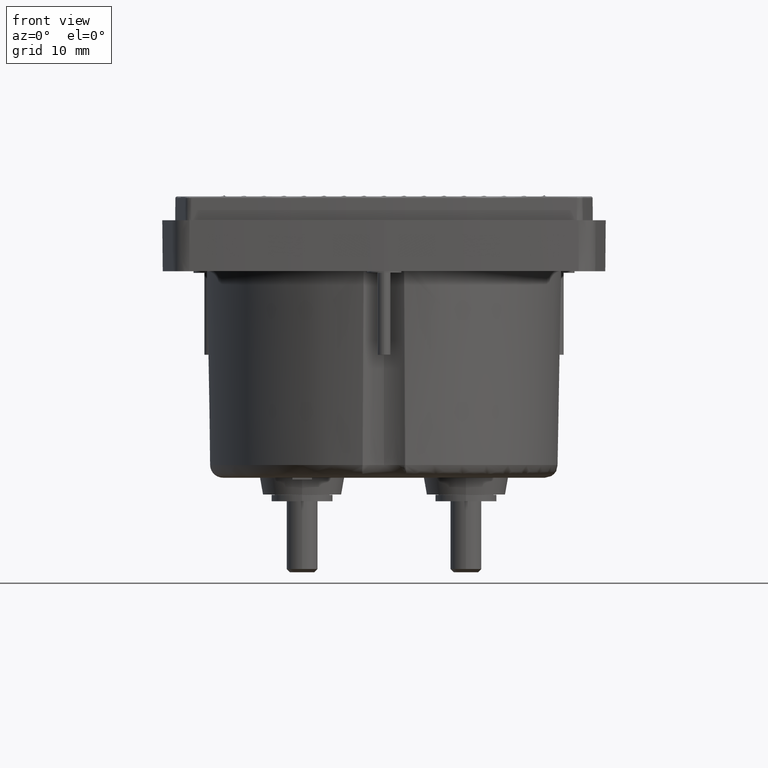
[diagram: clean part render]
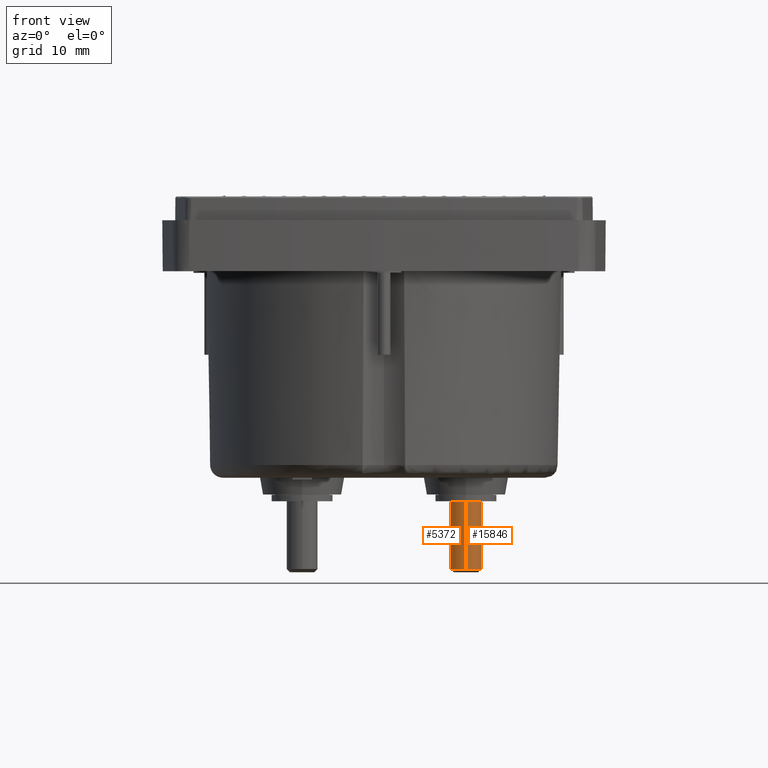
[diagram: same view with one multi-face feature highlighted, each face labeled with its STEP entity id]
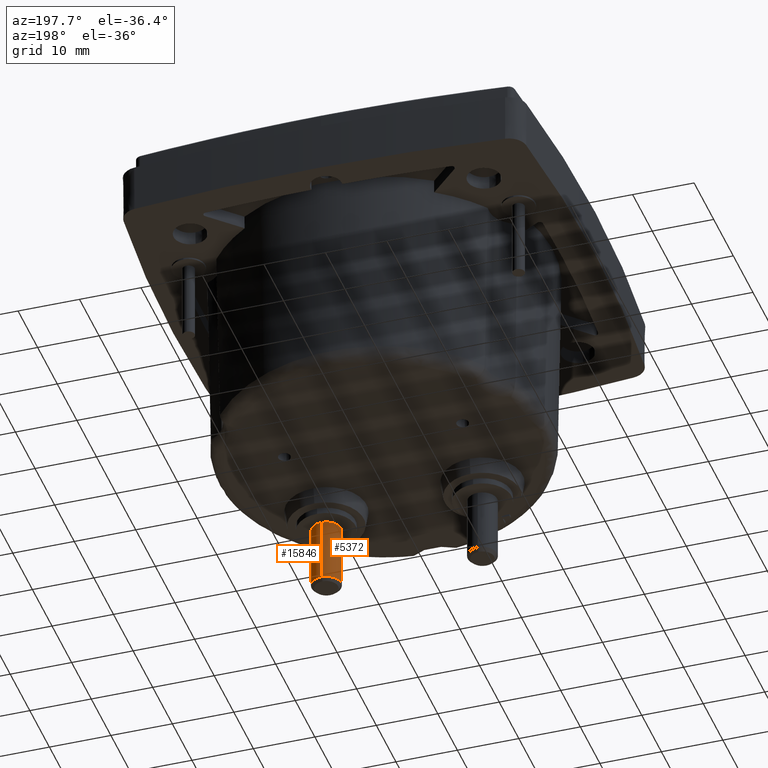
[diagram: same view with one multi-face feature highlighted, each face labeled with its STEP entity id]
A machine part, front view. The highlighted faces form ONE feature: a constant-radius fillet chain: 2 tangent blend faces with common blend radius 2.4 mm. The faces share edges in the B-rep.
A second angle (auxiliary view) of the same feature is appended — it is thin or edge-on in the first view.
Their STEP definitions:
[1] entity #5372 (Cylinder):
#896 = EDGE_LOOP ( 'NONE', ( #19648, #15893, #15320, #21729 ) ) ;
#915 = VERTEX_POINT ( 'NONE', #3619 ) ;
#1816 = DIRECTION ( 'NONE',  ( 0.000000000000000000, 1.000000000000000000, 0.000000000000000000 ) ) ;
#3619 = CARTESIAN_POINT ( 'NONE',  ( 1.070428637572283570, -0.5243881333733894090, -1.832677559055118310 ) ) ;
#5372 = ADVANCED_FACE ( 'NONE', ( #39122 ), #5507, .T. ) ;
#5507 = CYLINDRICAL_SURFACE ( 'NONE', #16151, 0.09448818897637792369 ) ;
#5927 = AXIS2_PLACEMENT_3D ( 'NONE', #34048, #48540, #14887 ) ;
#8078 = DIRECTION ( 'NONE',  ( 0.000000000000000000, 0.000000000000000000, -1.000000000000000000 ) ) ;
#9428 = VERTEX_POINT ( 'NONE', #26592 ) ;
#10161 = CARTESIAN_POINT ( 'NONE',  ( 1.070428637572283570, -0.7133645112596344040, -1.832677559055118310 ) ) ;
#11595 = VECTOR ( 'NONE', #8078, 39.37007874015748143 ) ;
#13779 = EDGE_CURVE ( 'NONE', #9428, #33797, #46354, .T. ) ;
#14887 = DIRECTION ( 'NONE',  ( 0.000000000000000000, 1.000000000000000000, 0.000000000000000000 ) ) ;
#15320 = ORIENTED_EDGE ( 'NONE', *, *, #44143, .T. ) ;
#15434 = DIRECTION ( 'NONE',  ( -0.000000000000000000, -0.000000000000000000, 1.000000000000000000 ) ) ;
#15893 = ORIENTED_EDGE ( 'NONE', *, *, #35081, .F. ) ;
#16151 = AXIS2_PLACEMENT_3D ( 'NONE', #17029, #32003, #1816 ) ;
#16409 = DIRECTION ( 'NONE',  ( 0.000000000000000000, 0.000000000000000000, -1.000000000000000000 ) ) ;
#17029 = CARTESIAN_POINT ( 'NONE',  ( 1.070428637572283570, -0.6188763223165119065, -1.419291732283464613 ) ) ;
#19172 = VERTEX_POINT ( 'NONE', #41865 ) ;
#19648 = ORIENTED_EDGE ( 'NONE', *, *, #13779, .F. ) ;
#20322 = CIRCLE ( 'NONE', #28914, 0.09448818897637792369 ) ;
#21729 = ORIENTED_EDGE ( 'NONE', *, *, #31032, .T. ) ;
#24248 = LINE ( 'NONE', #35555, #24477 ) ;
#24477 = VECTOR ( 'NONE', #16409, 39.37007874015748143 ) ;
#26592 = CARTESIAN_POINT ( 'NONE',  ( 1.070428637572283570, -0.7133645112928898024, -1.419291732283464613 ) ) ;
#27206 = DIRECTION ( 'NONE',  ( 0.000000000000000000, 1.000000000000000000, 0.000000000000000000 ) ) ;
#28914 = AXIS2_PLACEMENT_3D ( 'NONE', #38264, #15434, #27206 ) ;
#31032 = EDGE_CURVE ( 'NONE', #915, #33797, #20322, .T. ) ;
#31124 = CARTESIAN_POINT ( 'NONE',  ( 1.070428637572283570, -0.7133645112928898024, -1.419291732283464613 ) ) ;
#31777 = CIRCLE ( 'NONE', #5927, 0.09448818897637792369 ) ;
#32003 = DIRECTION ( 'NONE',  ( 0.000000000000000000, 0.000000000000000000, -1.000000000000000000 ) ) ;
#33797 = VERTEX_POINT ( 'NONE', #10161 ) ;
#34048 = CARTESIAN_POINT ( 'NONE',  ( 1.070428637572283570, -0.6188763223165119065, -1.419291732283464613 ) ) ;
#35081 = EDGE_CURVE ( 'NONE', #19172, #9428, #31777, .T. ) ;
#35555 = CARTESIAN_POINT ( 'NONE',  ( 1.070428637572283570, -0.5243881333401340106, -1.419291732283464613 ) ) ;
#38264 = CARTESIAN_POINT ( 'NONE',  ( 1.070428637572283570, -0.6188763223165119065, -1.832677559055118310 ) ) ;
#39122 = FACE_OUTER_BOUND ( 'NONE', #896, .T. ) ;
#41865 = CARTESIAN_POINT ( 'NONE',  ( 1.070428637572283570, -0.5243881333401340106, -1.419291732283464613 ) ) ;
#44143 = EDGE_CURVE ( 'NONE', #19172, #915, #24248, .T. ) ;
#46354 = LINE ( 'NONE', #31124, #11595 ) ;
#48540 = DIRECTION ( 'NONE',  ( -0.000000000000000000, -0.000000000000000000, 1.000000000000000000 ) ) ;
[2] entity #15846 (Cylinder):
#735 = CARTESIAN_POINT ( 'NONE',  ( 1.070428637572283570, -0.6188763223165119065, -1.832677559055118310 ) ) ;
#915 = VERTEX_POINT ( 'NONE', #3619 ) ;
#1659 = CIRCLE ( 'NONE', #32199, 0.09448818897637792369 ) ;
#3619 = CARTESIAN_POINT ( 'NONE',  ( 1.070428637572283570, -0.5243881333733894090, -1.832677559055118310 ) ) ;
#4884 = AXIS2_PLACEMENT_3D ( 'NONE', #18244, #44270, #33223 ) ;
#8078 = DIRECTION ( 'NONE',  ( 0.000000000000000000, 0.000000000000000000, -1.000000000000000000 ) ) ;
#9428 = VERTEX_POINT ( 'NONE', #26592 ) ;
#10161 = CARTESIAN_POINT ( 'NONE',  ( 1.070428637572283570, -0.7133645112596344040, -1.832677559055118310 ) ) ;
#10270 = CARTESIAN_POINT ( 'NONE',  ( 1.070428637572283570, -0.6188763223165119065, -1.419291732283464613 ) ) ;
#11595 = VECTOR ( 'NONE', #8078, 39.37007874015748143 ) ;
#12127 = ORIENTED_EDGE ( 'NONE', *, *, #44143, .F. ) ;
#12393 = ORIENTED_EDGE ( 'NONE', *, *, #42005, .F. ) ;
#13779 = EDGE_CURVE ( 'NONE', #9428, #33797, #46354, .T. ) ;
#15846 = ADVANCED_FACE ( 'NONE', ( #43901 ), #21557, .T. ) ;
#16409 = DIRECTION ( 'NONE',  ( 0.000000000000000000, 0.000000000000000000, -1.000000000000000000 ) ) ;
#18244 = CARTESIAN_POINT ( 'NONE',  ( 1.070428637572283570, -0.6188763223165119065, -1.419291732283464613 ) ) ;
#19172 = VERTEX_POINT ( 'NONE', #41865 ) ;
#21557 = CYLINDRICAL_SURFACE ( 'NONE', #37209, 0.09448818897637792369 ) ;
#24248 = LINE ( 'NONE', #35555, #24477 ) ;
#24477 = VECTOR ( 'NONE', #16409, 39.37007874015748143 ) ;
#26592 = CARTESIAN_POINT ( 'NONE',  ( 1.070428637572283570, -0.7133645112928898024, -1.419291732283464613 ) ) ;
#28612 = EDGE_LOOP ( 'NONE', ( #12393, #39118, #47527, #12127 ) ) ;
#31124 = CARTESIAN_POINT ( 'NONE',  ( 1.070428637572283570, -0.7133645112928898024, -1.419291732283464613 ) ) ;
#32199 = AXIS2_PLACEMENT_3D ( 'NONE', #735, #34137, #34856 ) ;
#33223 = DIRECTION ( 'NONE',  ( 0.000000000000000000, 1.000000000000000000, 0.000000000000000000 ) ) ;
#33797 = VERTEX_POINT ( 'NONE', #10161 ) ;
#34137 = DIRECTION ( 'NONE',  ( -0.000000000000000000, -0.000000000000000000, 1.000000000000000000 ) ) ;
#34856 = DIRECTION ( 'NONE',  ( 0.000000000000000000, 1.000000000000000000, 0.000000000000000000 ) ) ;
#35555 = CARTESIAN_POINT ( 'NONE',  ( 1.070428637572283570, -0.5243881333401340106, -1.419291732283464613 ) ) ;
#37209 = AXIS2_PLACEMENT_3D ( 'NONE', #10270, #47113, #43424 ) ;
#39118 = ORIENTED_EDGE ( 'NONE', *, *, #13779, .T. ) ;
#40512 = EDGE_CURVE ( 'NONE', #33797, #915, #1659, .T. ) ;
#41865 = CARTESIAN_POINT ( 'NONE',  ( 1.070428637572283570, -0.5243881333401340106, -1.419291732283464613 ) ) ;
#42005 = EDGE_CURVE ( 'NONE', #9428, #19172, #48010, .T. ) ;
#43424 = DIRECTION ( 'NONE',  ( 0.000000000000000000, 1.000000000000000000, 0.000000000000000000 ) ) ;
#43901 = FACE_OUTER_BOUND ( 'NONE', #28612, .T. ) ;
#44143 = EDGE_CURVE ( 'NONE', #19172, #915, #24248, .T. ) ;
#44270 = DIRECTION ( 'NONE',  ( -0.000000000000000000, -0.000000000000000000, 1.000000000000000000 ) ) ;
#46354 = LINE ( 'NONE', #31124, #11595 ) ;
#47113 = DIRECTION ( 'NONE',  ( 0.000000000000000000, 0.000000000000000000, -1.000000000000000000 ) ) ;
#47527 = ORIENTED_EDGE ( 'NONE', *, *, #40512, .T. ) ;
#48010 = CIRCLE ( 'NONE', #4884, 0.09448818897637792369 ) ;